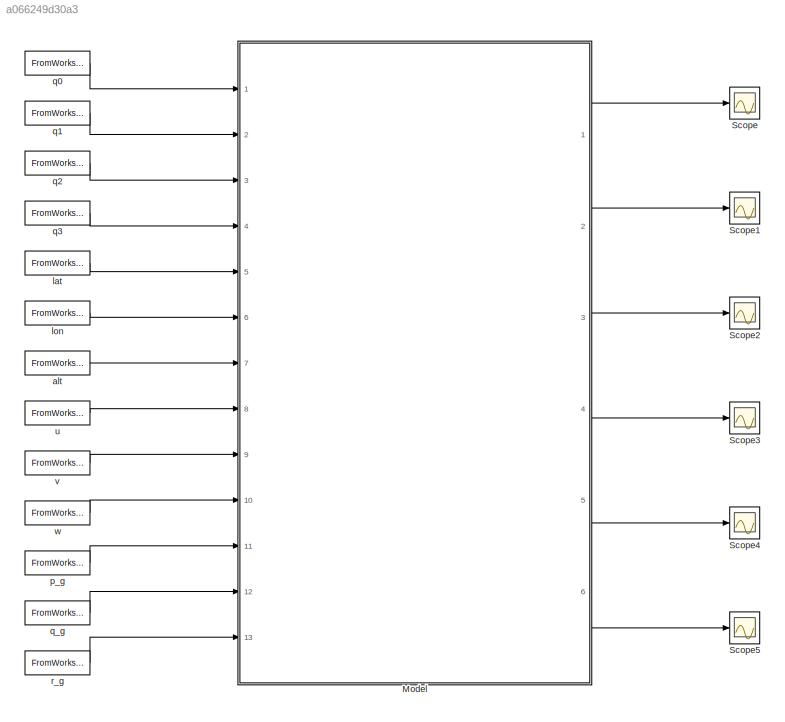
MODEL slx_a066249d30a3
KIND model
BLOCK [ModelReference] Model
  ModelNameDialog = model_main.slx
  ModelReferenceVersion = 1.467
  Ports = [13, 6]
BLOCK [Scope] Scope
  Floating = off
  NumInputPorts = 1
  Ports = [1]
  ScopeSpecificationString = Simulink.scopes.TimeScopeBlockCfg('CurrentConfiguration', extmgr.ConfigurationSet(extmgr.Configuration('Core','General UI',true),extmgr.Configuration('Core','Source UI',true),extmgr.Configuration('Sources','WiredSimulink',true),extmgr.Configuration('Visuals','Time Domain',true,'SerializedDisplays',{struct('MinYLimReal','-0.29048','MaxYLimReal','2.61434','YLabelReal','','MinYLimMag','0.00000','MaxY...<+1404ch>
BLOCK [Scope] Scope1
  Floating = off
  NumInputPorts = 1
  Ports = [1]
  ScopeSpecificationString = Simulink.scopes.TimeScopeBlockCfg('CurrentConfiguration', extmgr.ConfigurationSet(extmgr.Configuration('Core','General UI',true),extmgr.Configuration('Core','Source UI',true),extmgr.Configuration('Sources','WiredSimulink',true,'DataLoggingVariableName','ScopeData1'),extmgr.Configuration('Visuals','Time Domain',true,'SerializedDisplays',{struct('MinYLimReal','-0.29048','MaxYLimReal','2.61434','YLab...<+1468ch>
BLOCK [Scope] Scope2
  Floating = off
  NumInputPorts = 1
  Ports = [1]
  ScopeSpecificationString = Simulink.scopes.TimeScopeBlockCfg('CurrentConfiguration', extmgr.ConfigurationSet(extmgr.Configuration('Core','General UI',true),extmgr.Configuration('Core','Source UI',true),extmgr.Configuration('Sources','WiredSimulink',true,'DataLoggingVariableName','ScopeData2'),extmgr.Configuration('Visuals','Time Domain',true,'SerializedDisplays',{struct('MinYLimReal','-1.00000','MaxYLimReal','1.00000','YLab...<+1443ch>
BLOCK [Scope] Scope3
  Floating = off
  NumInputPorts = 1
  Ports = [1]
  ScopeSpecificationString = Simulink.scopes.TimeScopeBlockCfg('CurrentConfiguration', extmgr.ConfigurationSet(extmgr.Configuration('Core','General UI',true),extmgr.Configuration('Core','Source UI',true),extmgr.Configuration('Sources','WiredSimulink',true,'DataLoggingVariableName','ScopeData1'),extmgr.Configuration('Visuals','Time Domain',true),extmgr.Configuration('Tools','Plot Navigation',true),extmgr.Configuration('Tools',...<+40ch>
BLOCK [Scope] Scope4
  Floating = off
  NumInputPorts = 1
  Ports = [1]
  ScopeSpecificationString = Simulink.scopes.TimeScopeBlockCfg('CurrentConfiguration', extmgr.ConfigurationSet(extmgr.Configuration('Core','General UI',true),extmgr.Configuration('Core','Source UI',true),extmgr.Configuration('Sources','WiredSimulink',true,'DataLoggingVariableName','ScopeData2'),extmgr.Configuration('Visuals','Time Domain',true),extmgr.Configuration('Tools','Plot Navigation',true),extmgr.Configuration('Tools',...<+40ch>
BLOCK [Scope] Scope5
  Floating = off
  NumInputPorts = 1
  Ports = [1]
  ScopeSpecificationString = Simulink.scopes.TimeScopeBlockCfg('CurrentConfiguration', extmgr.ConfigurationSet(extmgr.Configuration('Core','General UI',true),extmgr.Configuration('Core','Source UI',true),extmgr.Configuration('Sources','WiredSimulink',true,'DataLoggingVariableName','ScopeData3'),extmgr.Configuration('Visuals','Time Domain',true),extmgr.Configuration('Tools','Plot Navigation',true),extmgr.Configuration('Tools',...<+40ch>
BLOCK [FromWorkspace] alt
  VariableName = alt
BLOCK [FromWorkspace] lat
  VariableName = lat
BLOCK [FromWorkspace] lon
  VariableName = lon
BLOCK [FromWorkspace] p_g
  VariableName = p_g
BLOCK [FromWorkspace] q0
  VariableName = q0
BLOCK [FromWorkspace] q1
  VariableName = q1
BLOCK [FromWorkspace] q2
  VariableName = q2
BLOCK [FromWorkspace] q3
  VariableName = q3
BLOCK [FromWorkspace] q_g
  VariableName = q_g
BLOCK [FromWorkspace] r_g
  VariableName = r_g
BLOCK [FromWorkspace] u
  VariableName = u_in
BLOCK [FromWorkspace] v
  VariableName = v_in
BLOCK [FromWorkspace] w
  VariableName = w_in
LINE Model:1 -> Scope:1
LINE Model:2 -> Scope1:1
LINE Model:3 -> Scope2:1
LINE Model:4 -> Scope3:1
LINE Model:5 -> Scope4:1
LINE Model:6 -> Scope5:1
LINE alt:1 -> Model:7
LINE lat:1 -> Model:5
LINE lon:1 -> Model:6
LINE p_g:1 -> Model:11
LINE q0:1 -> Model:1
LINE q1:1 -> Model:2
LINE q2:1 -> Model:3
LINE q3:1 -> Model:4
LINE q_g:1 -> Model:12
LINE r_g:1 -> Model:13
LINE u:1 -> Model:8
LINE v:1 -> Model:9
LINE w:1 -> Model:10
